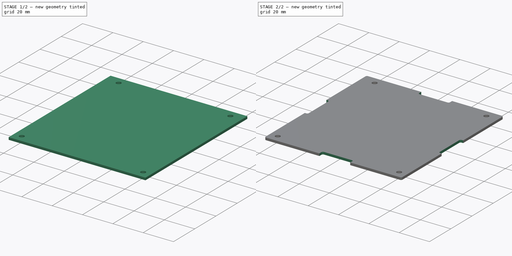
[diagram: build sequence overview — one tinted view per stage of 2, left to right]
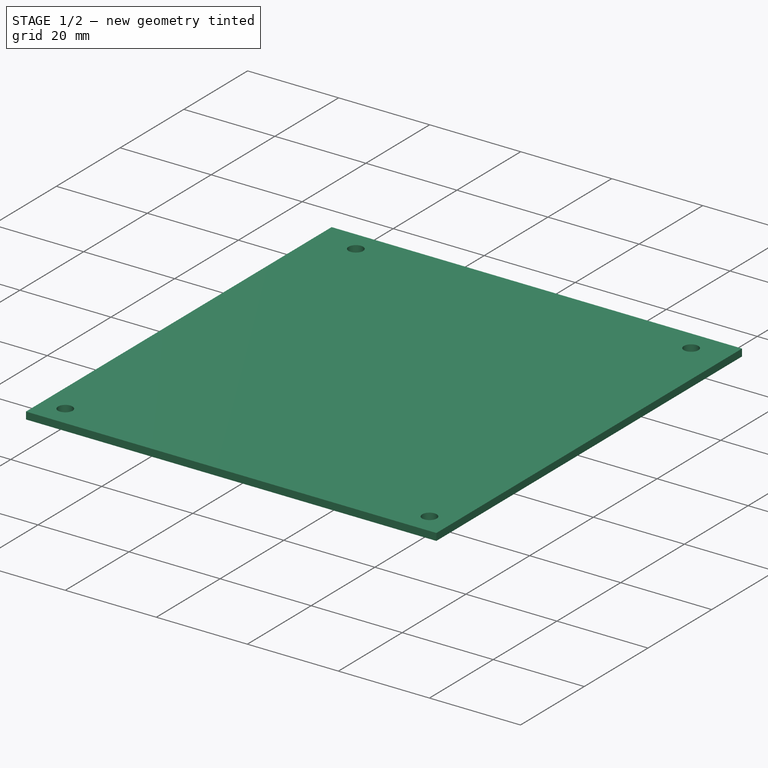
[diagram: stage 1 of 2 — iso view after this stage's code; geometry added in this stage tinted green]
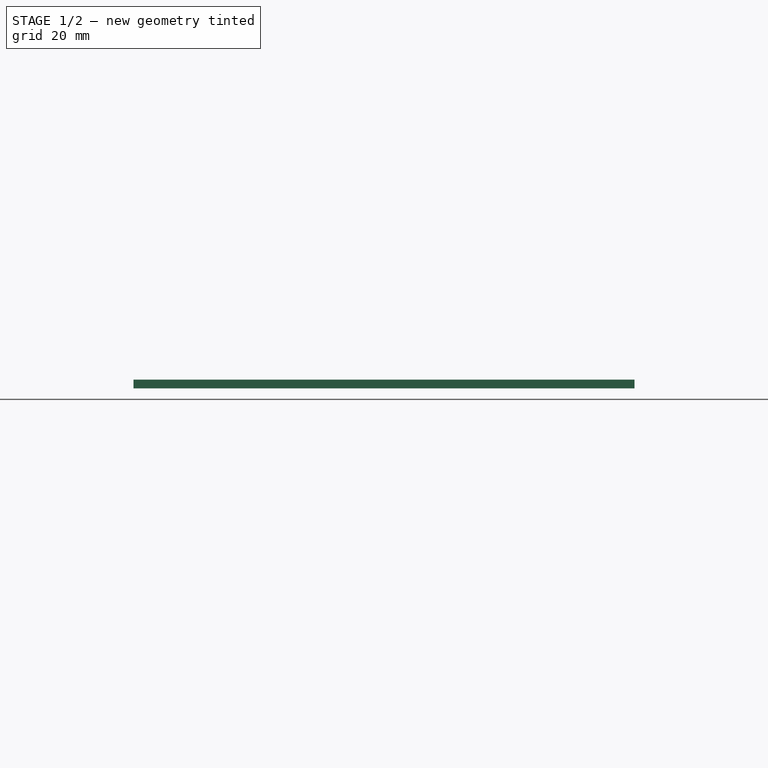
[diagram: stage 1 of 2 — front view after this stage's code; geometry added in this stage tinted green]
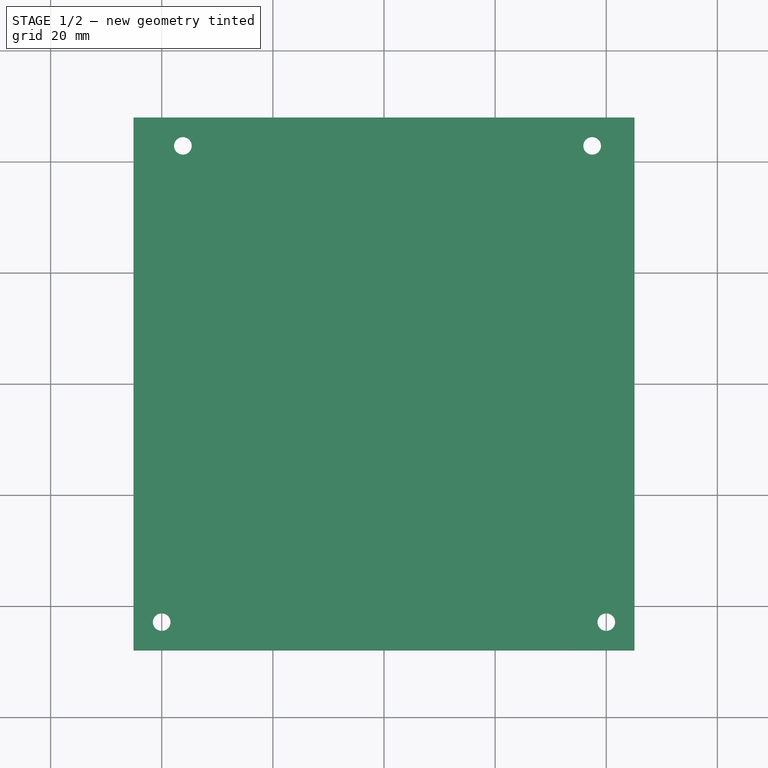
[diagram: stage 1 of 2 — top view after this stage's code; geometry added in this stage tinted green]
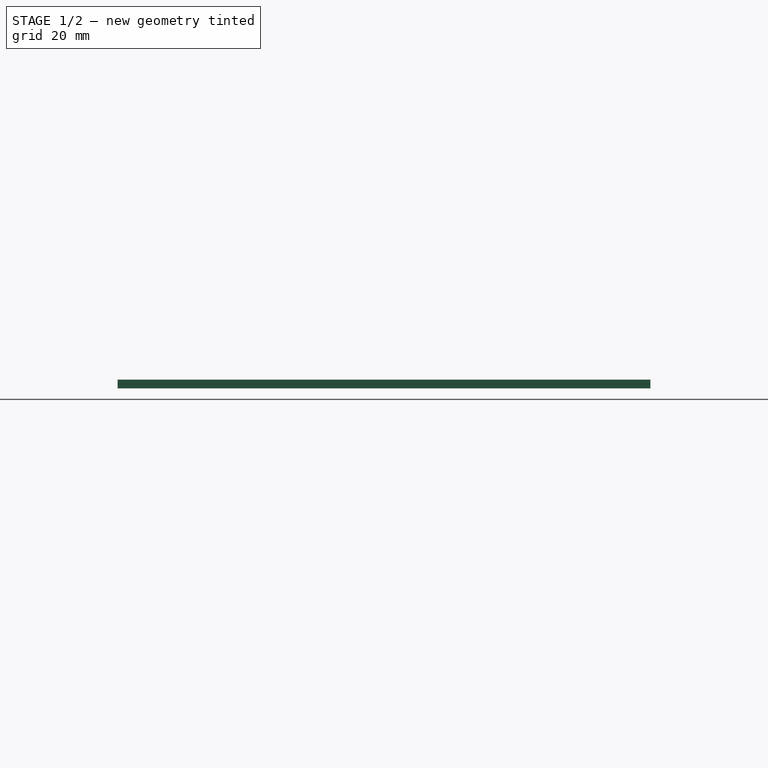
[diagram: stage 1 of 2 — right view after this stage's code; geometry added in this stage tinted green]
FCSTD DOCUMENT  (FreeCAD 0.20R29603 (Git))
Label: board_wo_header
License: All rights reserved
LicenseURL: http://en.wikipedia.org/wiki/All_rights_reserved
objects: Sketcher::SketchObject×3, PartDesign::Pocket×2, PartDesign::Pad×1, PartDesign::Fillet×1, PartDesign::Body×1
note: 12 computed .brp shape members not serialized (recipe doc carries the construction recipe); baked Part::Feature solids carry a one-line shape summary decoded from their .brp

FEATURE [Sketcher::SketchObject] Sketch
  FullyConstrained = true
  MapMode = 5
  Support = -> [XY_Plane]
  sketch-geometry (5):
    g0: LineSegment StartX=-45.085 StartY=-47.945 StartZ=0 EndX=-45.085 EndY=47.945 EndZ=0
    g1: LineSegment StartX=-45.085 StartY=47.945 StartZ=0 EndX=45.085 EndY=47.945 EndZ=0
    g2: LineSegment StartX=45.085 StartY=47.945 StartZ=0 EndX=45.085 EndY=-47.945 EndZ=0
    g3: LineSegment StartX=45.085 StartY=-47.945 StartZ=0 EndX=-45.085 EndY=-47.945 EndZ=0
    g4: GeomPoint X=1e-16 Y=0 Z=0
  constraints (12):
    c: Coincident(g0,g1)
    c: Coincident(g1,g2)
    c: Coincident(g2,g3)
    c: Coincident(g3,g0)
    c: Horizontal(g1)
    c: Horizontal(g3)
    c: Vertical(g0)
    c: Vertical(g2)
    c: Symmetric(g1,g0,g4)
    c: Coincident(g4,g-1)
    c: DistanceX(g1,g1) = 90.17
    c: DistanceY(g2,g2) = 95.89
FEATURE [PartDesign::Pad] Pad
  Direction = (0,0,1)
  Length = 1.57
  Length2 = 10
  Profile = -> Sketch
  ReferenceAxis = -> Sketch [N_Axis]
  Type = 0
FEATURE [Sketcher::SketchObject] Sketch001
  ExternalGeometry = -> [Pad]
  FullyConstrained = true
  MapMode = 5
  Placement = pos=(0,0,1.57) rot=(0,0,1;0rad)
  Support = -> [Pad]
  sketch-geometry (4):
    g0: Circle CenterX=37.465 CenterY=42.865 CenterZ=0 NormalX=0 NormalY=0 NormalZ=1 AngleXU=0 Radius=1.59
    g1: Circle CenterX=-36.195 CenterY=42.865 CenterZ=0 NormalX=0 NormalY=0 NormalZ=1 AngleXU=0 Radius=1.59
    g2: Circle CenterX=-40.005 CenterY=-42.865 CenterZ=0 NormalX=0 NormalY=0 NormalZ=1 AngleXU=0 Radius=1.59
    g3: Circle CenterX=40.005 CenterY=-42.865 CenterZ=0 NormalX=0 NormalY=0 NormalZ=1 AngleXU=0 Radius=1.59
  constraints (12):
    c: Equal(g3,g2)
    c: Equal(g2,g1)
    c: Equal(g1,g0)
    c: Diameter(g0) = 3.18
    c: DistanceX(g-6,g1) = 8.89
    c: DistanceY(g-6,g1) = 90.81
    c: DistanceX(g-6,g2) = 5.08
    c: DistanceY(g-6,g2) = 5.08
    c: DistanceX(g-6,g3) = 85.09
    c: DistanceY(g-6,g3) = 5.08
    c: DistanceX(g-6,g0) = 82.55
    c: DistanceY(g-6,g0) = 90.81
FEATURE [PartDesign::Pocket] Pocket
  BaseFeature = -> Pad
  Direction = (0,0,-1)
  Length = 5
  Length2 = 5
  Profile = -> Sketch001
  ReferenceAxis = -> Sketch001 [N_Axis]
  Type = 1
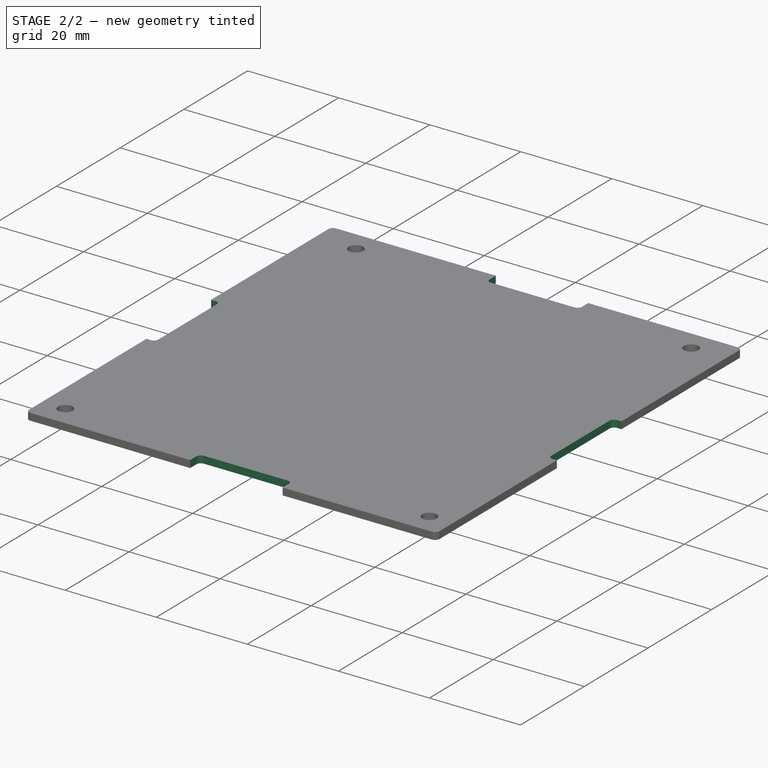
[diagram: stage 2 of 2 — iso view after this stage's code; geometry added in this stage tinted green]
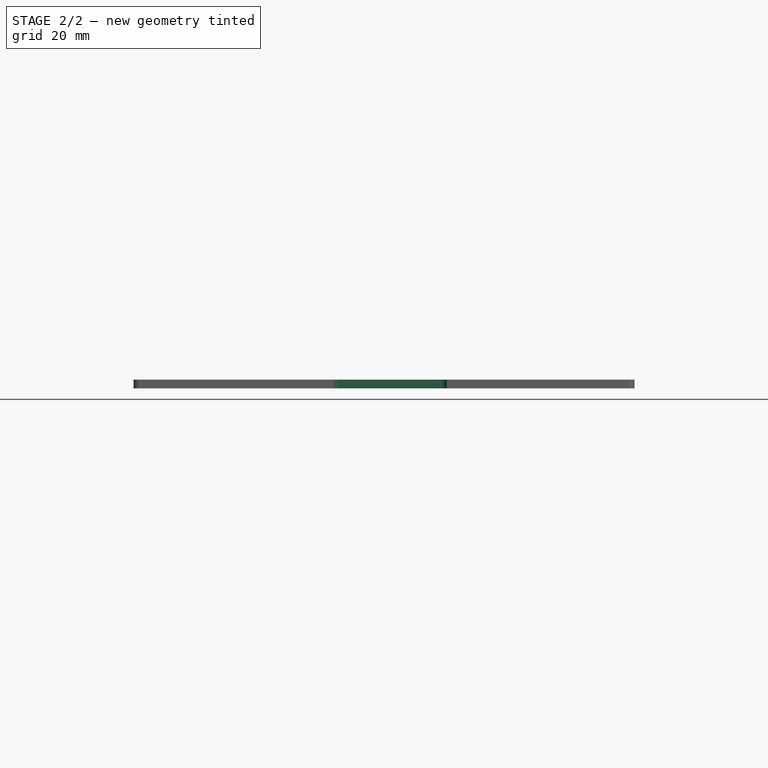
[diagram: stage 2 of 2 — front view after this stage's code; geometry added in this stage tinted green]
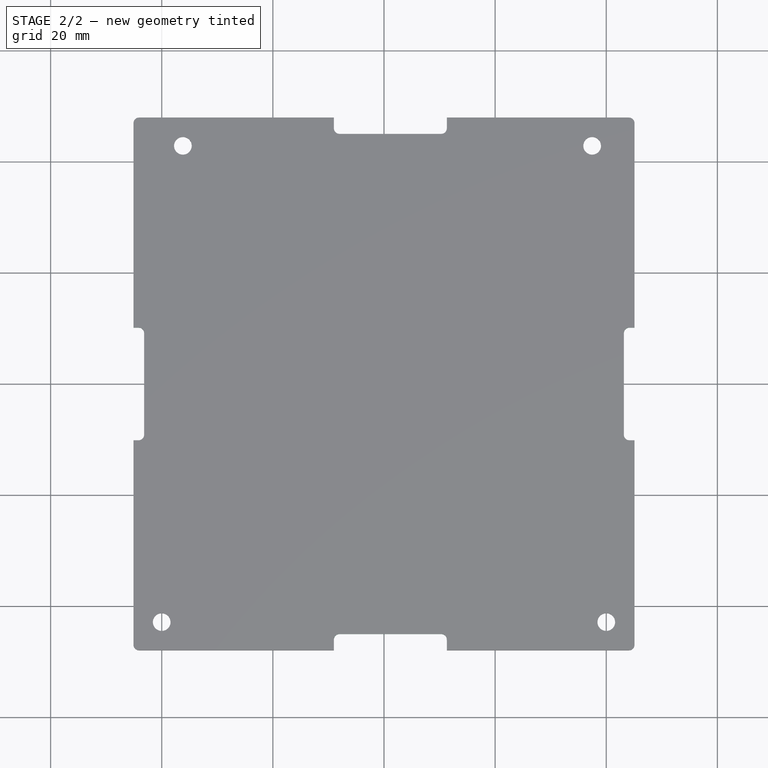
[diagram: stage 2 of 2 — top view after this stage's code; geometry added in this stage tinted green]
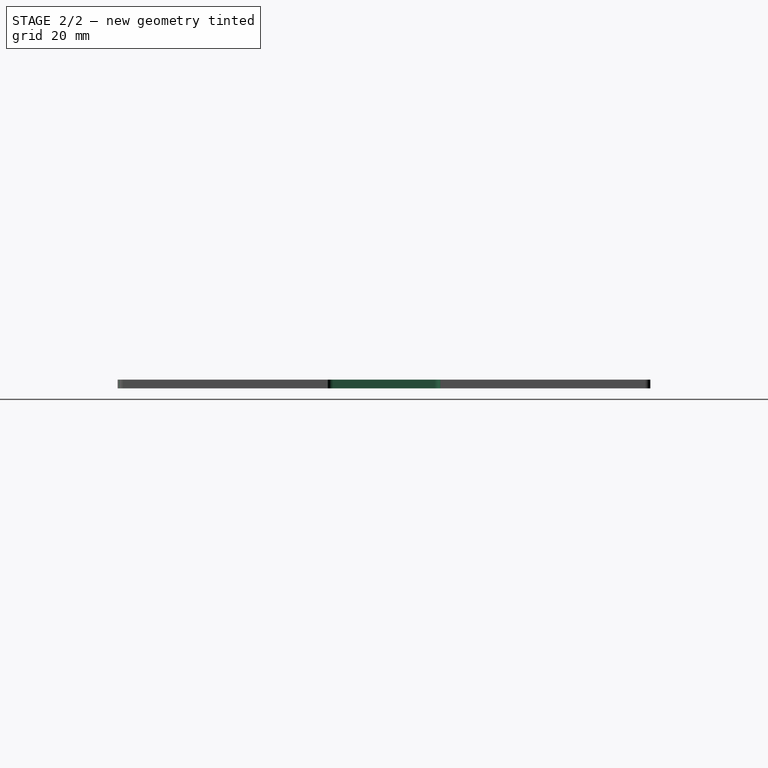
[diagram: stage 2 of 2 — right view after this stage's code; geometry added in this stage tinted green]
FEATURE [Sketcher::SketchObject] Sketch002
  ExternalGeometry = -> [Pocket]
  FullyConstrained = false
  MapMode = 5
  Placement = pos=(0,0,1.57) rot=(0,0,1;0rad)
  Support = -> [Pocket]
  sketch-geometry (16):
    g0: LineSegment StartX=-9.015 StartY=61.4386 StartZ=0 EndX=11.305 EndY=61.4386 EndZ=0
    g1: LineSegment StartX=11.305 StartY=61.4386 StartZ=0 EndX=11.305 EndY=45.015 EndZ=0
    g2: LineSegment StartX=11.305 StartY=45.015 StartZ=0 EndX=-9.015 EndY=45.015 EndZ=0
    g3: LineSegment StartX=-9.015 StartY=45.015 StartZ=0 EndX=-9.015 EndY=61.4386 EndZ=0
    g4: LineSegment StartX=-55.0646 StartY=10.135 StartZ=0 EndX=-43.165 EndY=10.135 EndZ=0
    g5: LineSegment StartX=-43.165 StartY=10.135 StartZ=0 EndX=-43.165 EndY=-10.135 EndZ=0
    g6: LineSegment StartX=-43.165 StartY=-10.135 StartZ=0 EndX=-55.0646 EndY=-10.135 EndZ=0
    g7: LineSegment StartX=-55.0646 StartY=-10.135 StartZ=0 EndX=-55.0646 EndY=10.135 EndZ=0
    g8: LineSegment StartX=-9.015 StartY=-61.4386 StartZ=0 EndX=11.305 EndY=-61.4386 EndZ=0
    g9: LineSegment StartX=11.305 StartY=-61.4386 StartZ=0 EndX=11.305 EndY=-45.015 EndZ=0
    g10: LineSegment StartX=11.305 StartY=-45.015 StartZ=0 EndX=-9.015 EndY=-45.015 EndZ=0
    g11: LineSegment StartX=-9.015 StartY=-45.015 StartZ=0 EndX=-9.015 EndY=-61.4386 EndZ=0
    g12: LineSegment StartX=55.0646 StartY=10.135 StartZ=0 EndX=43.165 EndY=10.135 EndZ=0
    g13: LineSegment StartX=43.165 StartY=10.135 StartZ=0 EndX=43.165 EndY=-10.135 EndZ=0
    g14: LineSegment StartX=43.165 StartY=-10.135 StartZ=0 EndX=55.0646 EndY=-10.135 EndZ=0
    g15: LineSegment StartX=55.0646 StartY=-10.135 StartZ=0 EndX=55.0646 EndY=10.135 EndZ=0
  constraints (38):
    c: Coincident(g0,g1)
    c: Coincident(g1,g2)
    c: Coincident(g2,g3)
    c: Coincident(g3,g0)
    c: Horizontal(g0)
    c: Horizontal(g2)
    c: Vertical(g1)
    c: Vertical(g3)
    c: Coincident(g4,g5)
    c: Coincident(g5,g6)
    c: Coincident(g6,g7)
    c: Coincident(g7,g4)
    c: Horizontal(g4)
    c: Horizontal(g6)
    c: Vertical(g5)
    c: Vertical(g7)
    c: DistanceX(g-3,g0) = 36.07
    c: DistanceX(g-3,g0) = 56.39
    c: DistanceY(g-6,g2) = 92.96
    c: DistanceX(g-6,g5) = 1.92
    c: DistanceY(g-6,g5) = 37.81
    c: DistanceY(g-6,g4) = 58.08
    c: Coincident(g8,g9)
    c: Coincident(g9,g10)
    c: Coincident(g10,g11)
    c: Coincident(g11,g8)
    c: Horizontal(g8)
    c: Horizontal(g10)
    c: Vertical(g9)
    c: Vertical(g11)
    c: Coincident(g12,g13)
    c: Coincident(g13,g14)
    c: Coincident(g14,g15)
    c: Coincident(g15,g12)
    c: Horizontal(g12)
    c: Horizontal(g14)
    c: Vertical(g13)
    c: Vertical(g15)
FEATURE [PartDesign::Pocket] Pocket001
  BaseFeature = -> Pocket
  Direction = (0,0,-1)
  Length = 5
  Length2 = 5
  Profile = -> Sketch002
  ReferenceAxis = -> Sketch002 [N_Axis]
  Type = 1
FEATURE [PartDesign::Fillet] Fillet
  Base = -> Pocket001 [Edge55,Edge29,Edge53,Edge58,Edge57,Edge60,Edge63,Edge62,Edge65,Edge68,Edge67,Edge4]
  BaseFeature = -> Pocket001
  Radius = 1
  SupportTransform = false
  UseAllEdges = false
FEATURE [PartDesign::Body] Body
  Group = -> [Sketch,Pad,Sketch001,Pocket,Sketch002,Pocket001,Fillet]
  Origin = -> Origin
  Tip = -> Fillet
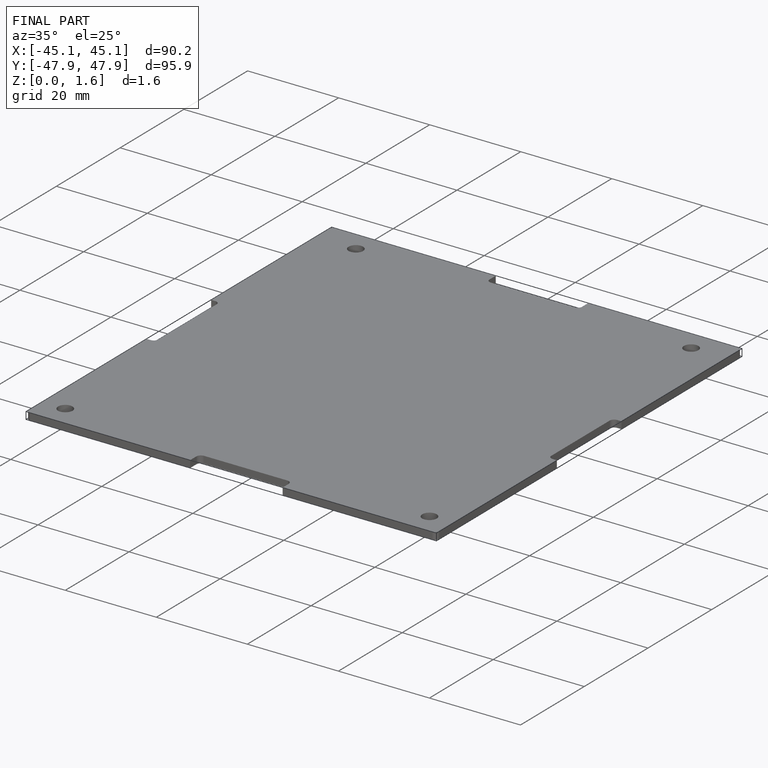
[diagram: finished part — iso view with bounding-box wireframe]
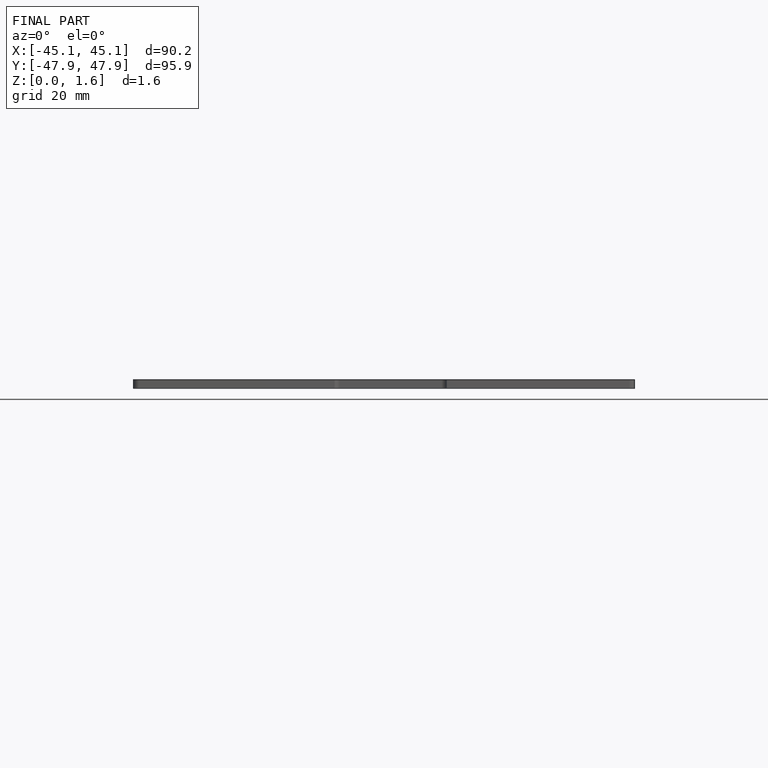
[diagram: finished part — front view with bounding-box wireframe]
